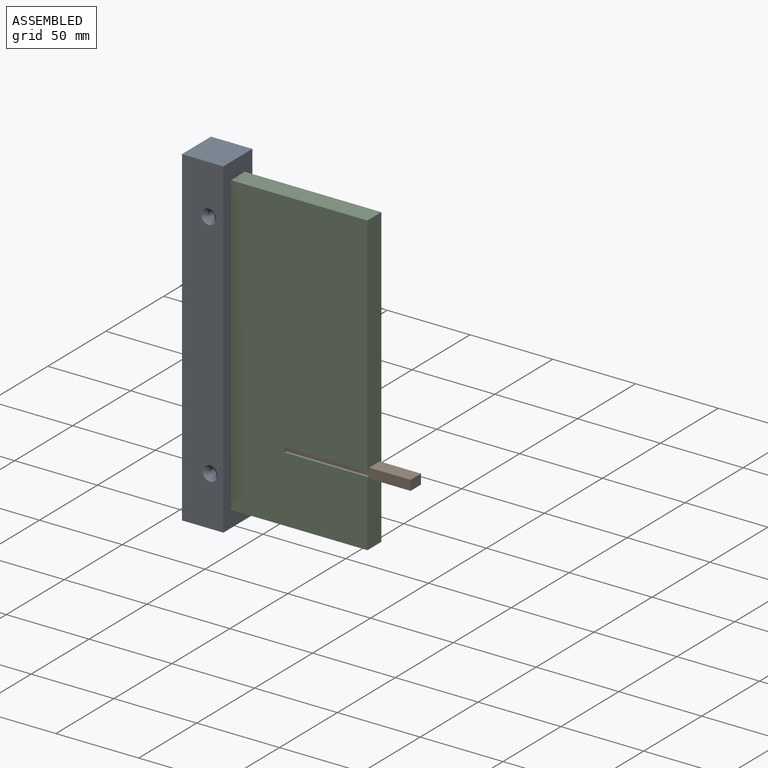
[diagram: assembled view]
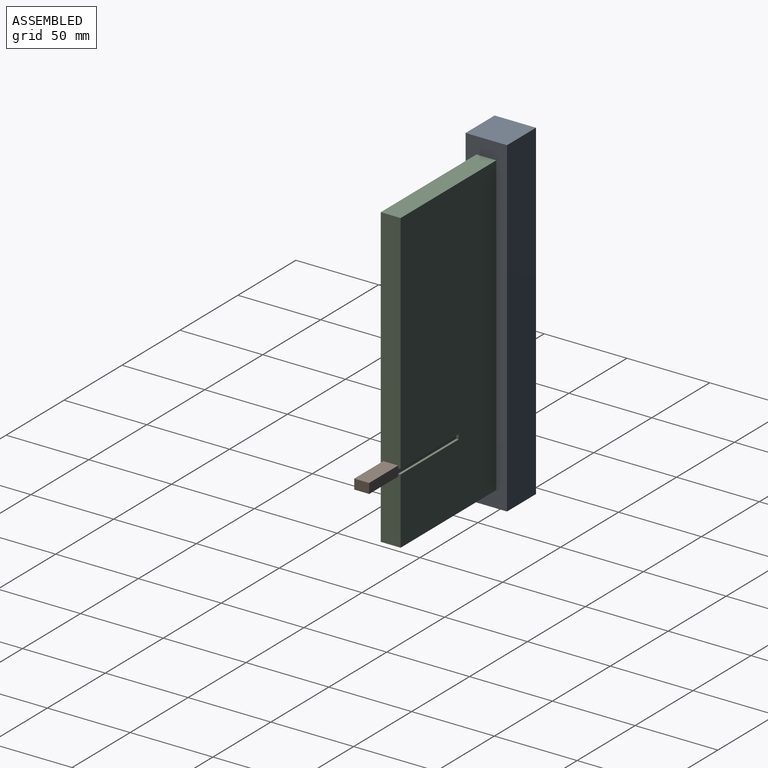
[diagram: assembled view, second angle]
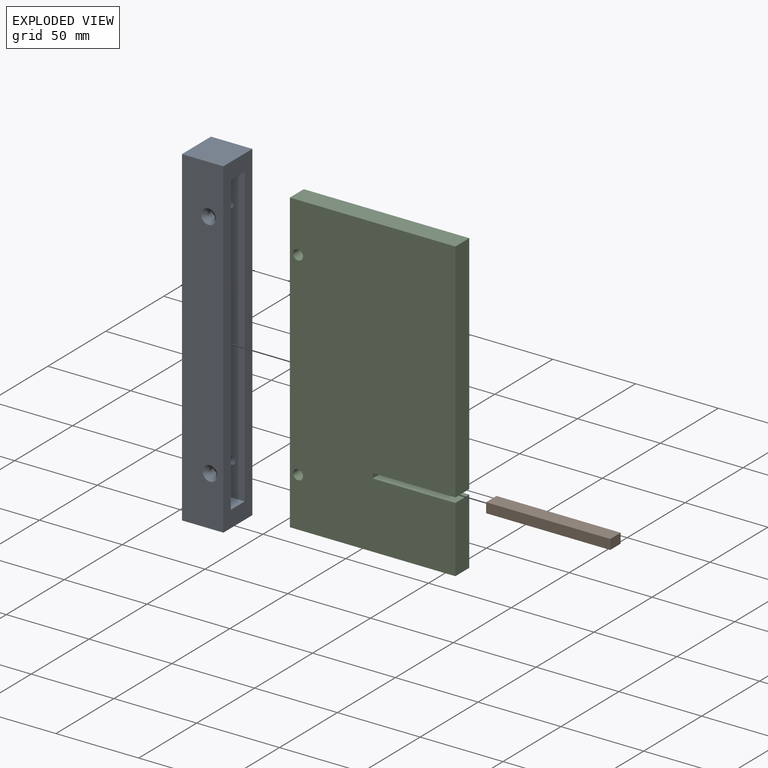
[diagram: exploded view]
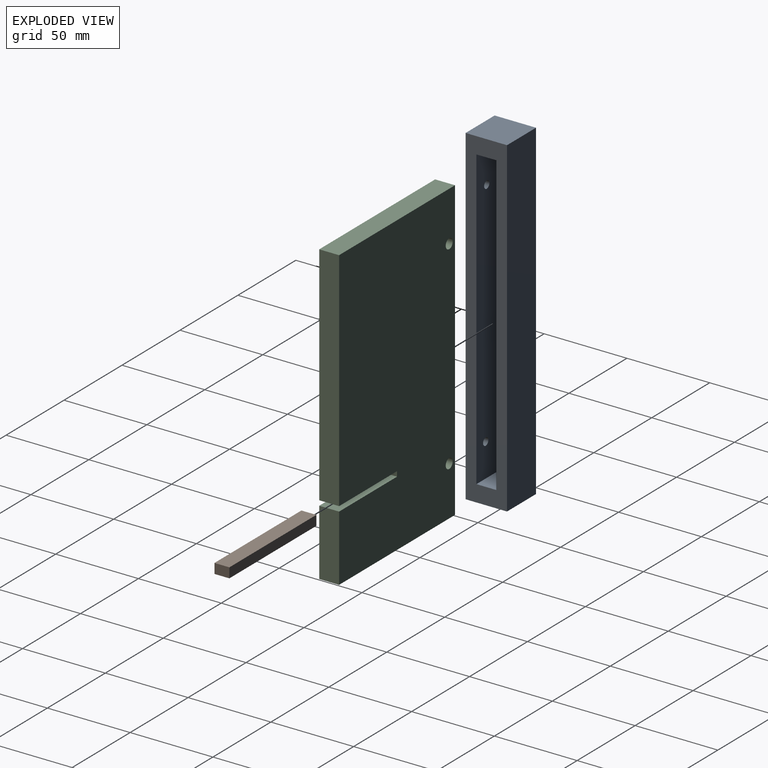
[diagram: exploded view, second angle]
ASSEMBLY  parts=3 mates=2
PART A: 19 faces, bbox 25x25x200 mm
  f0: plane 25x25mm, normal (0,0,-1), area 625mm2, adj f1,f3,f4,f5
  f1: plane 200x25mm, normal (1,0,0), area 2840mm2, adj f0,f2,f4,f5,f6,f7,f8,f9
  f2: plane 25x25mm, normal (0,0,1), area 625mm2, adj f1,f3,f4,f5
  f3: plane 200x25mm, normal (-1,0,0), area 5000mm2, adj f0,f2,f4,f5
  f4: plane 200x25mm, normal (0,-1,0), area 4873.9mm2, adj f0,f1,f2,f3,f12,f14
  f5: plane 200x25mm, normal (0,1,0), area 5000mm2, adj f0,f1,f2,f3
  f6: plane 180x17.5mm, normal (0,-1,0), area 3118.2mm2, adj f1,f7,f9,f10,f15,f17
  f7: plane 17.5x12mm, normal (0,0,-1), area 210mm2, adj f1,f6,f8,f10
  f8: plane 180x17.5mm, normal (0,1,0), area 3118.2mm2, adj f1,f7,f9,f10,f11,f13
  f9: plane 17.5x12mm, normal (0,0,1), area 210mm2, adj f1,f6,f8,f10
  f10: plane 180x12mm, normal (1,0,0), area 2160mm2, adj f6,f7,f8,f9
  f11: cylinder r=2.25mm len=4.5mm, axis (0,-1,0), area 60.4mm2, adj f8,f12
  f12: cone r=2.25mm half-angle=45deg, axis (0,-1,0), area 66.7mm2, adj f4,f11
  f13: cylinder r=2.25mm len=4.5mm, axis (0,-1,0), area 60.4mm2, adj f8,f14
  f14: cone r=2.25mm half-angle=45deg, axis (0,-1,0), area 66.7mm2, adj f4,f13
  f15: cylinder r=2.25mm len=4.5mm, axis (0,-1,0), area 50.9mm2, adj f6,f16
  f16: cone r=0mm half-angle=59deg, axis (0,-1,0), area 18.6mm2, adj f15
  f17: cylinder r=2.25mm len=4.5mm, axis (0,-1,0), area 50.9mm2, adj f6,f18
  f18: cone r=0mm half-angle=59deg, axis (0,-1,0), area 18.6mm2, adj f17
PART B: 6 faces, bbox 75x9x6 mm
  f0: plane 75x9mm, normal (0,0,-1), area 675mm2, adj f1,f3,f4,f5
  f1: plane 9x6mm, normal (1,0,0), area 54mm2, adj f0,f2,f4,f5
  f2: plane 75x9mm, normal (0,0,1), area 675mm2, adj f1,f3,f4,f5
  f3: plane 9x6mm, normal (-1,0,0), area 54mm2, adj f0,f2,f4,f5
  f4: plane 75x6mm, normal (0,-1,0), area 450mm2, adj f0,f1,f2,f3
  f5: plane 75x6mm, normal (0,1,0), area 450mm2, adj f0,f1,f2,f3
PART C: 12 faces, bbox 100x12x180 mm
  f0: plane 50x12mm, normal (0,0,1), area 600mm2, adj f1,f8,f10,f11
  f1: plane 12x3mm, normal (1,0,0), area 36mm2, adj f0,f2,f10,f11
  f2: plane 50x12mm, normal (0,0,-1), area 600mm2, adj f1,f3,f10,f11
  f3: plane 137x12mm, normal (1,0,0), area 1644mm2, adj f2,f4,f10,f11
  f4: plane 100x12mm, normal (0,0,1), area 1200mm2, adj f3,f5,f10,f11
  f5: plane 180x12mm, normal (-1,0,0), area 2160mm2, adj f4,f6,f10,f11
  f6: plane 100x12mm, normal (0,0,-1), area 1200mm2, adj f5,f8,f10,f11
  f7: cylinder r=3mm len=12mm, axis (0,1,0), area 226.2mm2, adj f10,f11
  f8: plane 40x12mm, normal (1,0,0), area 480mm2, adj f0,f6,f10,f11
  f9: cylinder r=3mm len=12mm, axis (0,1,0), area 226.2mm2, adj f10,f11
  f10: plane 180x100mm, normal (0,-1,0), area 17793.5mm2, adj f0,f1,f2,f3,f4,f5,f6,f7
  f11: plane 180x100mm, normal (0,1,0), area 17793.5mm2, adj f0,f1,f2,f3,f4,f5,f6,f7
PLACE A t=(24.92,-53.67,-87.32)mm
PLACE B t=(107.42,-53.67,-135.82)mm
PLACE C t=(19.32,-53.67,-87.32)mm
MATE fastened C.f1 <-> B.f3  axis (1,0,0) through (69.92,-53.67,-135.82)mm
MATE fastened A.f10 <-> C.f5  axis (1,0,0) through (19.92,-53.67,-87.32)mm
